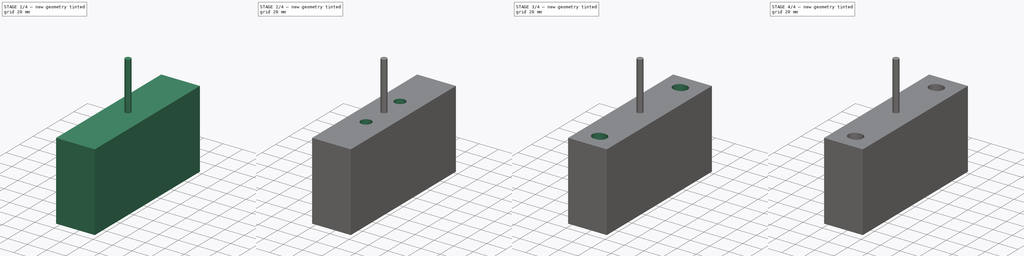
[diagram: build sequence overview — one tinted view per stage of 4, left to right]
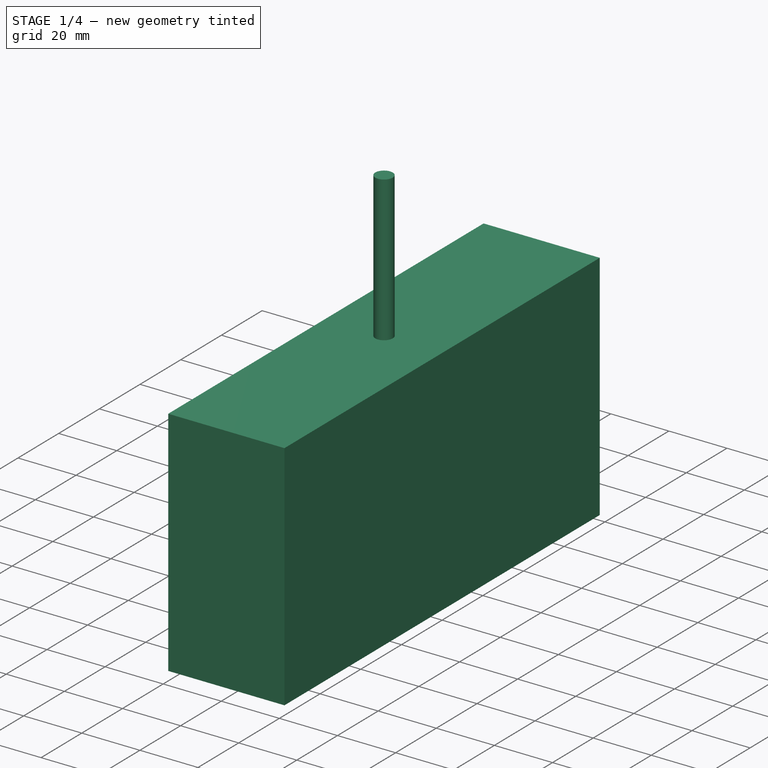
[diagram: stage 1 of 4 — iso view after this stage's code; geometry added in this stage tinted green]
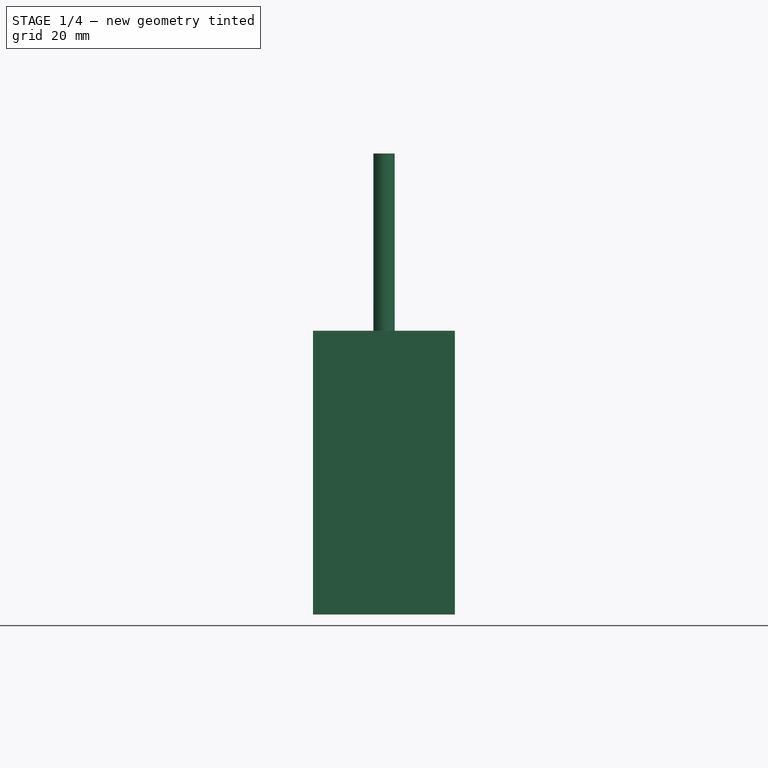
[diagram: stage 1 of 4 — front view after this stage's code; geometry added in this stage tinted green]
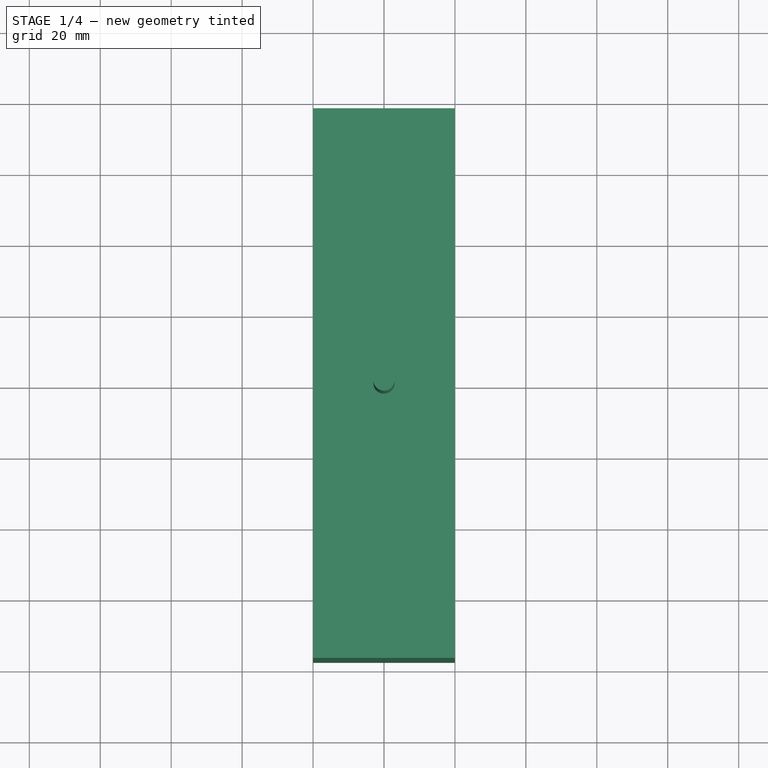
[diagram: stage 1 of 4 — top view after this stage's code; geometry added in this stage tinted green]
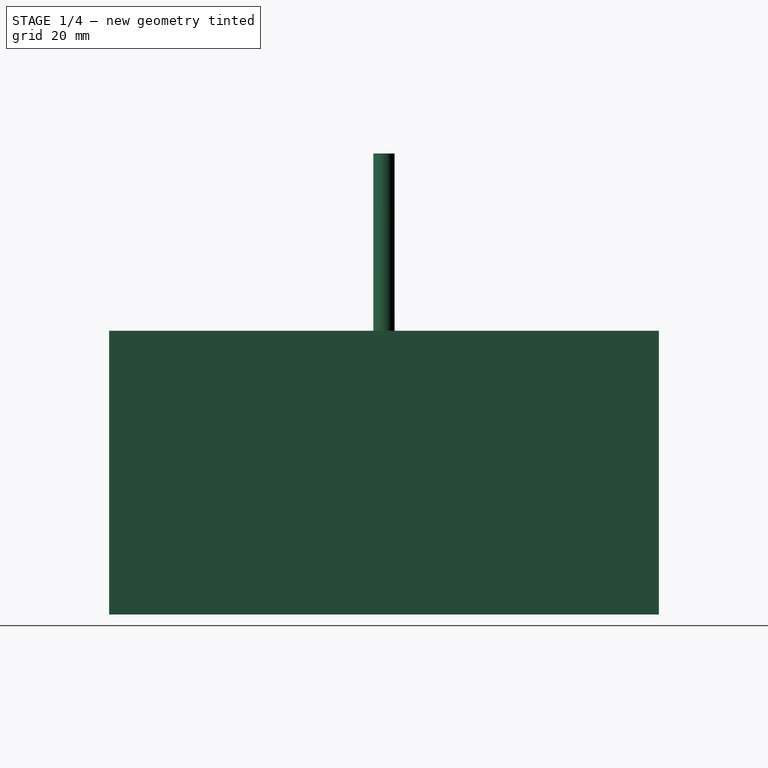
[diagram: stage 1 of 4 — right view after this stage's code; geometry added in this stage tinted green]
FCSTD DOCUMENT  (FreeCAD 0.20R29603 (Git))
Label: Drill_80_40_Profile_template
License: All rights reserved
LicenseURL: http://en.wikipedia.org/wiki/All_rights_reserved
objects: Sketcher::SketchObject×4, PartDesign::SubShapeBinder×4, Path::FeaturePython×4, PartDesign::Pad×3, Part::FeaturePython×3, App::DocumentObjectGroup×3, PartDesign::Pocket×2, PartDesign::Body×2, Spreadsheet::Sheet×1, PartDesign::Hole×1, App::FeaturePython×1
note: 27 computed .brp shape members not serialized (recipe doc carries the construction recipe); baked Part::Feature solids carry a one-line shape summary decoded from their .brp

FEATURE [Sketcher::SketchObject] Sketch
  FullyConstrained = true
  MapMode = 5
  Placement = pos=(0,0,0) rot=(1,0,0;1.5708rad)
  Support = -> [XZ_Plane]
  expr: Constraints[8] = <<Spreadsheet_profile>>.Heigth
  expr: Constraints[9] = <<Spreadsheet_profile>>.Wide
  sketch-geometry (5):
    g0: LineSegment StartX=-20 StartY=0 StartZ=0 EndX=-20 EndY=-80 EndZ=0
    g1: LineSegment StartX=-20 StartY=-80 StartZ=0 EndX=20 EndY=-80 EndZ=0
    g2: LineSegment StartX=20 StartY=-80 StartZ=0 EndX=20 EndY=0 EndZ=0
    g3: LineSegment StartX=20 StartY=0 StartZ=0 EndX=-20 EndY=0 EndZ=0
    g4: GeomPoint X=0 Y=0 Z=0
  constraints (12):
    c: Coincident(g0,g1)
    c: Coincident(g1,g2)
    c: Coincident(g2,g3)
    c: Coincident(g3,g0)
    c: Horizontal(g1)
    c: Vertical(g0)
    c: Vertical(g2)
    c: Coincident(g4,g-1)
    c: DistanceY(g0,g0) = 80
    c: DistanceX(g3,g3) = 40
    c: Horizontal(g0,g4)
    c: Symmetric(g0,g2,g-2)
FEATURE [Spreadsheet::Sheet] Spreadsheet  label="Spreadsheet_profile"
  cells = A1=Name; B1=Value; A2=Wide; B2(Wide)=40; A3=Heigth; B3(Heigth)=80; A4=Lenght; B4(Lenght)=155; A5=Slot_Height; B5(Slot_Height)=12.5; A7=Central_Hole_Diameter; B7(Central_Hole_Diameter)=30; A10=Distance_Hole_6mm; B10(Distance_Hole_6mm)=50; A11=Distance_Hole_8mm; B11(Distance_Hole_8mm)=120
FEATURE [PartDesign::Pad] Pad  label="Pad_40_80_Profile"
  Direction = (0,-1,-2e-16)
  Length = 155
  Length2 = 10
  Midplane = true
  Placement = pos=(0,0,0) rot=(1,0,0;1.5708rad)
  Profile = -> Sketch
  ReferenceAxis = -> Sketch [N_Axis]
  Type = 0
  expr: Length = <<Spreadsheet_profile>>.Lenght
FEATURE [App::DocumentObjectGroup] Model
  Group = -> [Clone]
FEATURE [Part::FeaturePython] ToolBit001  label="6mm Endmill"  # Path/CAM toolbit (typed FeaturePython)
  BitPropertyNames = Chipload | CuttingEdgeHeight | Diameter | Flutes | Length | Material | ShankDiameter | SpindleDirection
  BitShape = <path>
  Chipload = 0
  CuttingEdgeHeight = 30
  Diameter = 6
  File = <path>
  Flutes = 0
  Length = 50
  Material = 0
  ShankDiameter = 6
  ShapeName = endmill
  SpindleDirection = 0
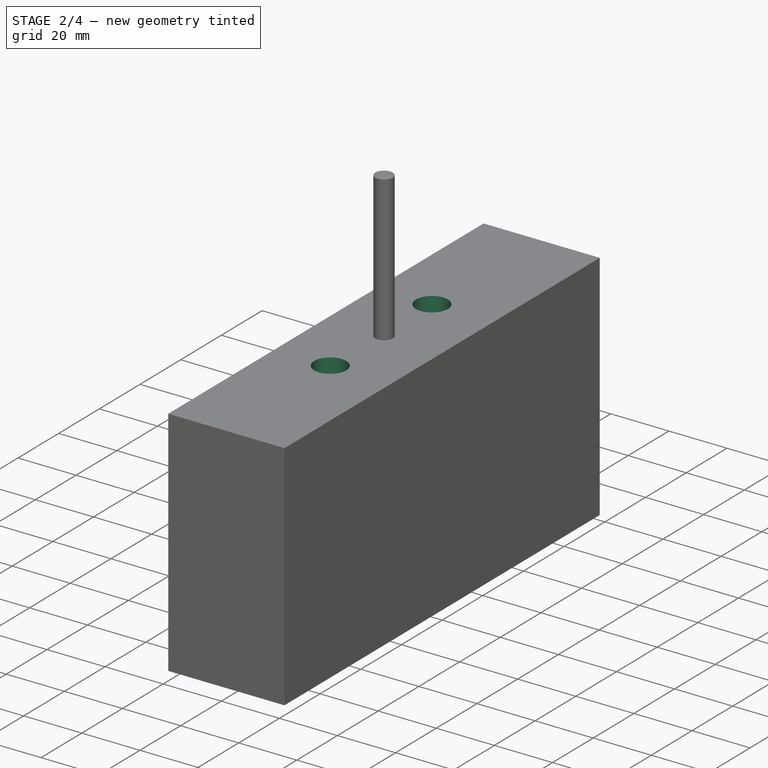
[diagram: stage 2 of 4 — iso view after this stage's code; geometry added in this stage tinted green]
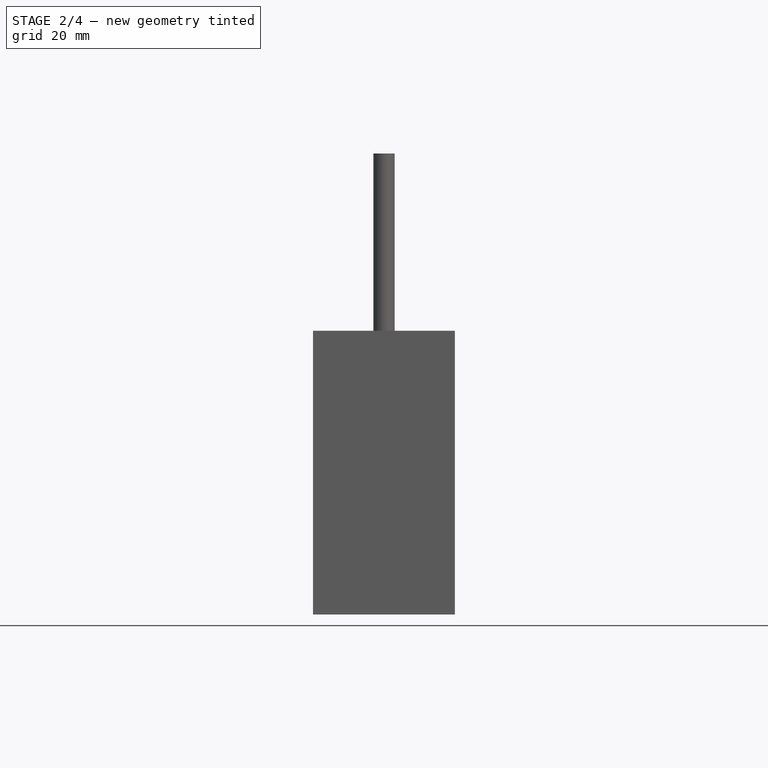
[diagram: stage 2 of 4 — front view after this stage's code; geometry added in this stage tinted green]
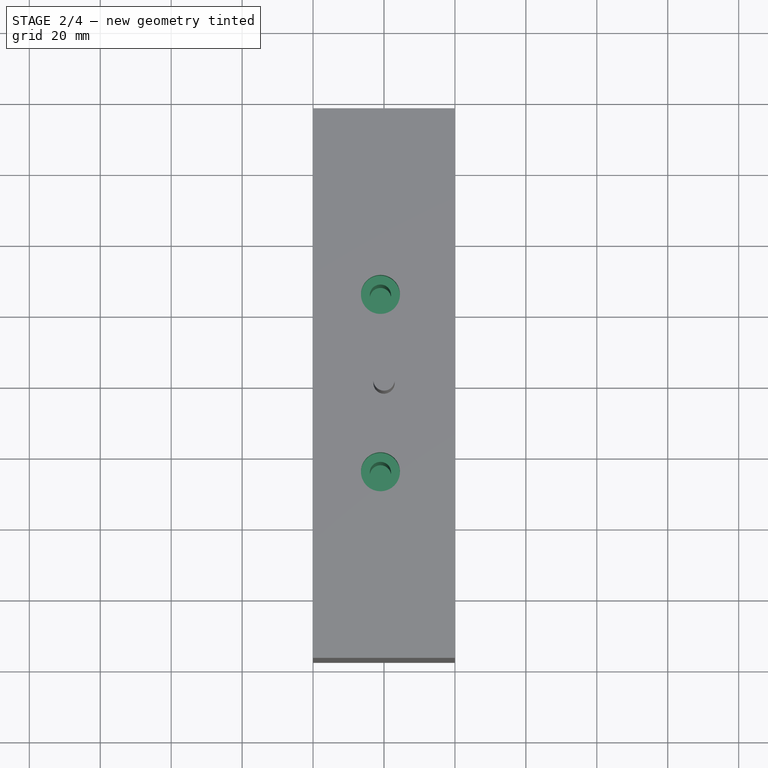
[diagram: stage 2 of 4 — top view after this stage's code; geometry added in this stage tinted green]
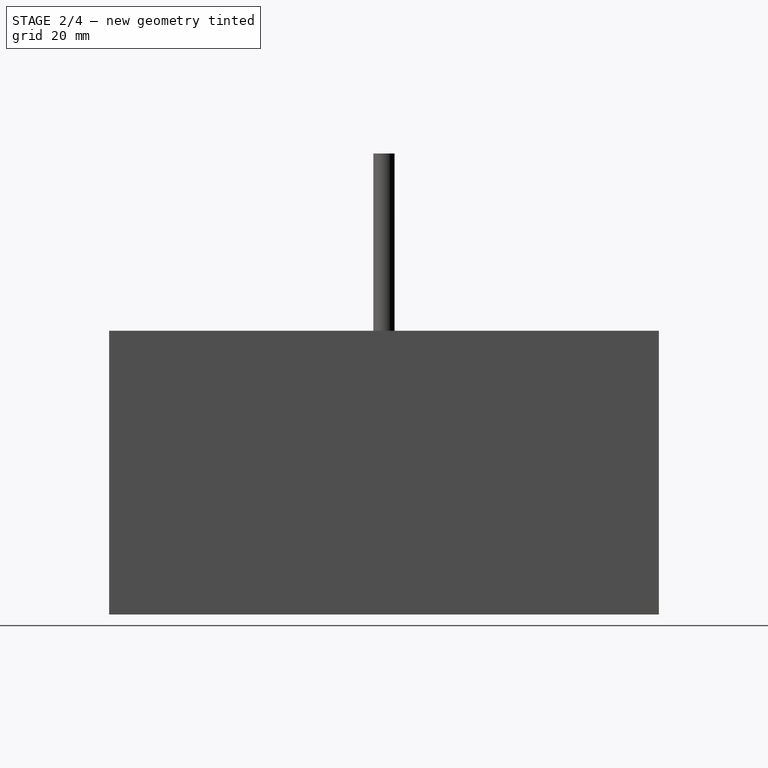
[diagram: stage 2 of 4 — right view after this stage's code; geometry added in this stage tinted green]
FEATURE [Sketcher::SketchObject] Sketch001
  FullyConstrained = true
  MapMode = 5
  Placement = pos=(0,0,0) rot=(0,0,1;3.14159rad)
  Support = -> [Pad]
  sketch-geometry (2):
    g0: Circle CenterX=1 CenterY=25 CenterZ=0 NormalX=0 NormalY=0 NormalZ=1 AngleXU=0 Radius=3
    g1: Circle CenterX=1 CenterY=-25 CenterZ=0 NormalX=0 NormalY=0 NormalZ=1 AngleXU=0 Radius=3
  constraints (5):
    c: Equal(g1,g0)
    c: Diameter(g0) = 6
    c: Symmetric(g0,g1,g-1)
    c: DistanceY(g1,g0) = 50
    c: DistanceX(g-1,g0) = 1
FEATURE [PartDesign::Hole] Hole  label="Hole_6mm"
  BaseFeature = -> Pad
  CustomThreadClearance = 0
  Depth = 67.5
  DepthType = 0
  Diameter = 6
  DrillForDepth = false
  DrillPoint = 0
  DrillPointAngle = 118
  HoleCutCountersinkAngle = 90
  HoleCutCustomValues = false
  HoleCutDepth = 12.5
  HoleCutDiameter = 11
  HoleCutType = 1
  ModelThread = false
  Placement = pos=(0,0,0) rot=(1,0,0;1.5708rad)
  Profile = -> Sketch001
  Tapered = false
  TaperedAngle = 90
  ThreadClass = 0
  ThreadDepth = 67.5
  ThreadDepthType = 0
  ThreadDirection = 0
  ThreadFit = 0
  ThreadSize = 0
  ThreadType = 0
  Threaded = false
  UseCustomThreadClearance = false
  expr: Depth = <<Spreadsheet_profile>>.Heigth - <<Spreadsheet_profile>>.Slot_Height
  expr: HoleCutDepth = <<Spreadsheet_profile>>.Slot_Height
FEATURE [Sketcher::SketchObject] Sketch002  label="Sketch_8mmPocket"
  FullyConstrained = true
  MapMode = 5
  Placement = pos=(0,1.78e-14,-80) rot=(1,0,0;3.14159rad)
  Support = -> [Hole]
  sketch-geometry (16):
    g0: ArcOfCircle CenterX=-1 CenterY=59.5 CenterZ=0 NormalX=0 NormalY=0 NormalZ=1 AngleXU=0 Radius=4.25 StartAngle=1.5708 EndAngle=4.71239
    g1: ArcOfCircle CenterX=1 CenterY=59.5 CenterZ=0 NormalX=0 NormalY=0 NormalZ=1 AngleXU=0 Radius=4.25 StartAngle=4.71239 EndAngle=7.85398
    g2: LineSegment StartX=-1 StartY=55.25 StartZ=0 EndX=1 EndY=55.25 EndZ=0
    g3: LineSegment StartX=1 StartY=63.75 StartZ=0 EndX=-1 EndY=63.75 EndZ=0
    g4: ArcOfCircle CenterX=-1 CenterY=-59.5 CenterZ=0 NormalX=0 NormalY=0 NormalZ=1 AngleXU=0 Radius=4.25 StartAngle=1.5708 EndAngle=4.71239
    g5: ArcOfCircle CenterX=1 CenterY=-59.5 CenterZ=0 NormalX=0 NormalY=0 NormalZ=1 AngleXU=0 Radius=4.25 StartAngle=4.71239 EndAngle=7.85398
    g6: LineSegment StartX=-1 StartY=-63.75 StartZ=0 EndX=1 EndY=-63.75 EndZ=0
    g7: LineSegment StartX=1 StartY=-55.25 StartZ=0 EndX=-1 EndY=-55.25 EndZ=0
    g8: ArcOfCircle CenterX=-1 CenterY=59.5 CenterZ=0 NormalX=0 NormalY=0 NormalZ=1 AngleXU=0 Radius=6.5 StartAngle=1.5708 EndAngle=4.71239
    g9: ArcOfCircle CenterX=1 CenterY=59.5 CenterZ=0 NormalX=0 NormalY=0 NormalZ=1 AngleXU=0 Radius=6.5 StartAngle=4.71239 EndAngle=7.85398
    g10: LineSegment StartX=-1 StartY=53 StartZ=0 EndX=1 EndY=53 EndZ=0
    g11: LineSegment StartX=1 StartY=66 StartZ=0 EndX=-1 EndY=66 EndZ=0
    g12: ArcOfCircle CenterX=-1 CenterY=-59.5 CenterZ=0 NormalX=0 NormalY=0 NormalZ=1 AngleXU=0 Radius=6.5 StartAngle=1.5708 EndAngle=4.71239
    g13: ArcOfCircle CenterX=1 CenterY=-59.5 CenterZ=0 NormalX=0 NormalY=0 NormalZ=1 AngleXU=0 Radius=6.5 StartAngle=4.71239 EndAngle=7.85398
    g14: LineSegment StartX=-1 StartY=-66 StartZ=0 EndX=1 EndY=-66 EndZ=0
    g15: LineSegment StartX=1 StartY=-53 StartZ=0 EndX=-1 EndY=-53 EndZ=0
  constraints (33):
    c: Tangent(g0,g2) = -1.5708
    c: Tangent(g2,g1) = -1.5708
    c: Tangent(g1,g3) = -1.5708
    c: Tangent(g3,g0) = -1.5708
    c: Equal(g0,g1)
    c: Tangent(g4,g6) = -1.5708
    c: Tangent(g6,g5) = -1.5708
    c: Tangent(g5,g7) = -1.5708
    c: Tangent(g7,g4) = -1.5708
    c: Equal(g4,g5)
    c: Equal(g1,g5)
    c: Diameter(g1) = 8.5
    c: DistanceX(g3,g3) = 2
    c: DistanceY(g4,g0) = 119
    c: Symmetric(g0,g1,g-2)
    c: Symmetric(g4,g5,g-2)
    c: Symmetric(g4,g0,g-1)
    c: Tangent(g8,g10) = -1.5708
    c: Tangent(g10,g9) = -1.5708
    c: Tangent(g9,g11) = -1.5708
    c: Tangent(g11,g8) = -1.5708
    c: Equal(g8,g9)
    c: Coincident(g8,g0)
    c: Coincident(g9,g1)
    c: Diameter(g9) = 13
    c: Tangent(g12,g14) = -1.5708
    c: Tangent(g14,g13) = -1.5708
    c: Tangent(g13,g15) = -1.5708
    c: Tangent(g15,g12) = -1.5708
    c: Equal(g12,g13)
    c: Coincident(g12,g4)
    c: Coincident(g13,g5)
    c: Equal(g9,g13)
FEATURE [PartDesign::SubShapeBinder] Binder  label="Binder_8mmHole"
  BindCopyOnChange = 0
  BindMode = 0
  ClaimChildren = false
  Context = -> Body [Binder.]
  Fuse = false
  MakeFace = true
  OffsetFill = false
  OffsetIntersection = false
  OffsetJoinType = 0
  OffsetOpenResult = false
  PartialLoad = false
  Relative = true
  Support = -> [Sketch002[Edge5,Edge8,Edge7,Edge6,Edge1,Edge4,Edge3,Edge2]]
  _Version = 2
FEATURE [PartDesign::SubShapeBinder] Binder001  label="Binder_ConterBore"
  BindCopyOnChange = 0
  BindMode = 0
  ClaimChildren = false
  Context = -> Body [Binder001.]
  Fuse = false
  MakeFace = true
  OffsetFill = false
  OffsetIntersection = false
  OffsetJoinType = 0
  OffsetOpenResult = false
  PartialLoad = false
  Relative = true
  Support = -> [Sketch002[Edge5,Edge8,Edge7,Edge6,Edge1,Edge4,Edge3,Edge2]]
  _Version = 2
FEATURE [PartDesign::Pocket] Pocket  label="Pocket_8mm"
  BaseFeature = -> Hole
  Direction = (0,2e-16,-1)
  Length = 67.5
  Length2 = 5
  Placement = pos=(0,0,0) rot=(1,0,0;1.5708rad)
  Profile = -> Binder
  Reversed = true
  Type = 0
  expr: Length = <<Spreadsheet_profile>>.Heigth - <<Spreadsheet_profile>>.Slot_Height
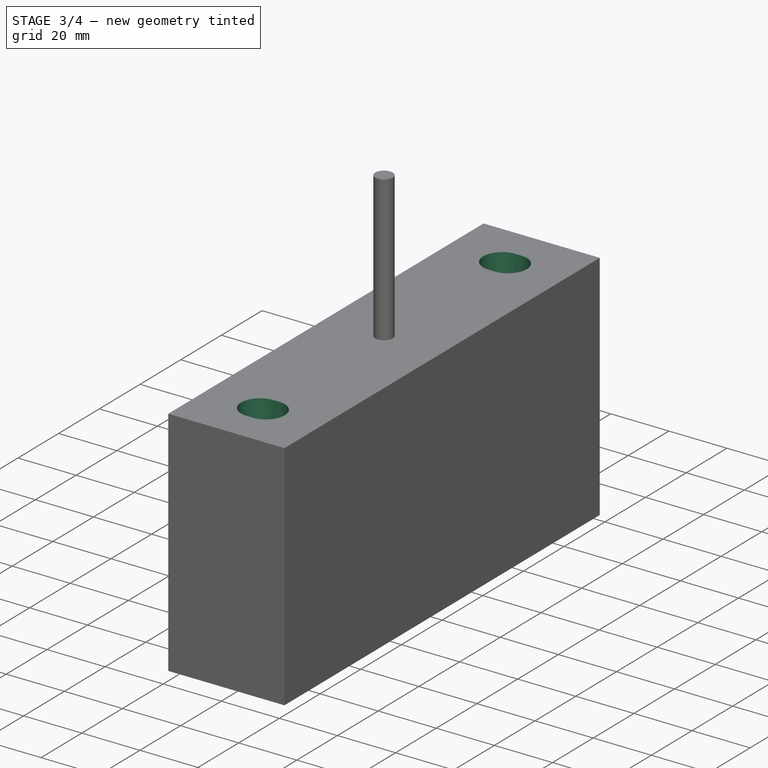
[diagram: stage 3 of 4 — iso view after this stage's code; geometry added in this stage tinted green]
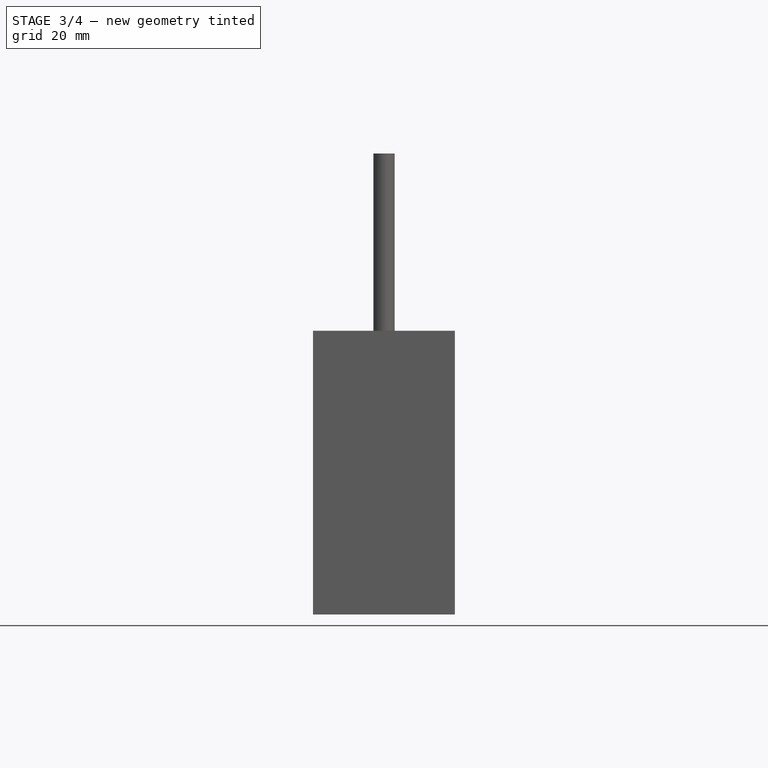
[diagram: stage 3 of 4 — front view after this stage's code; geometry added in this stage tinted green]
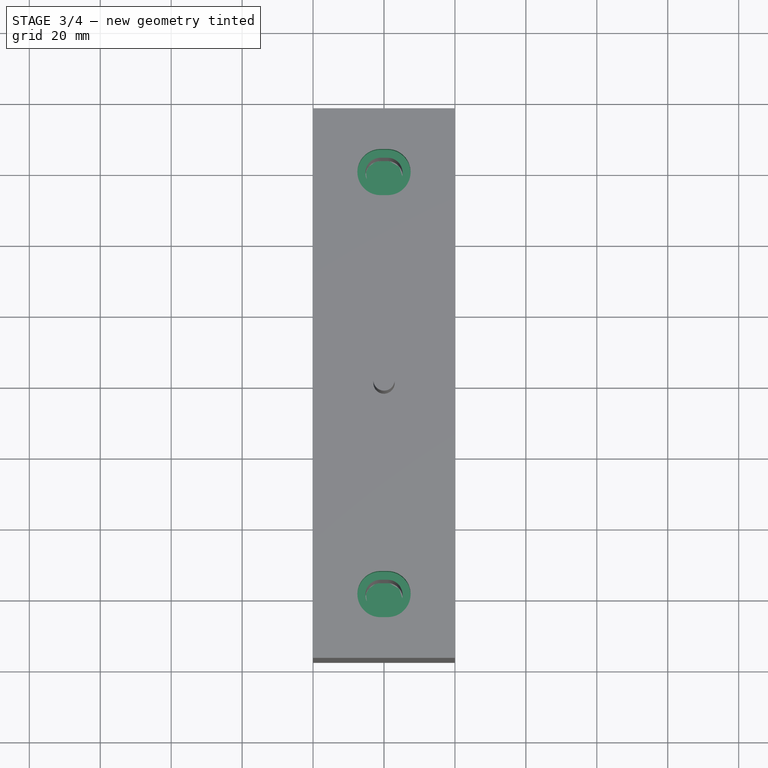
[diagram: stage 3 of 4 — top view after this stage's code; geometry added in this stage tinted green]
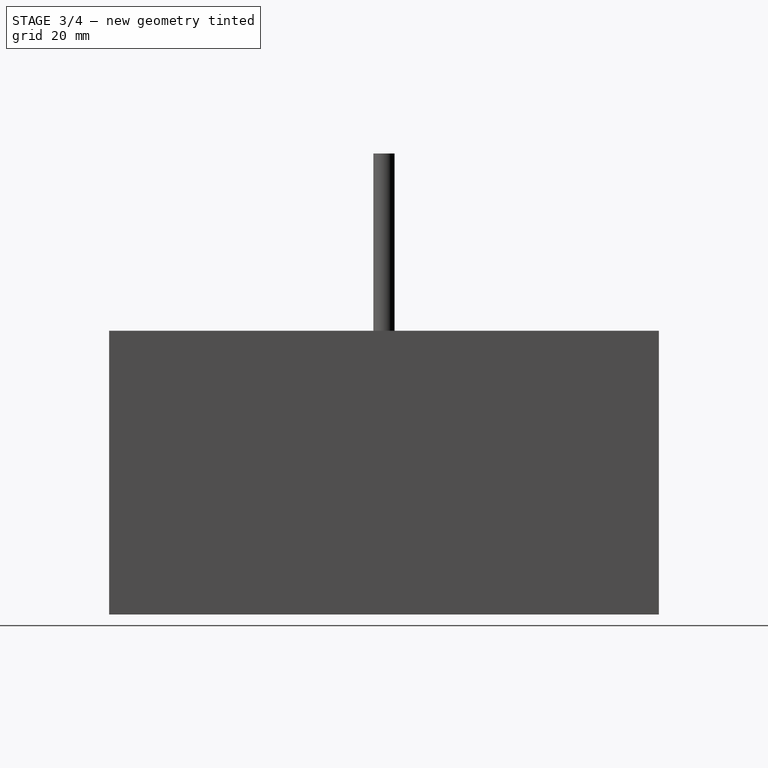
[diagram: stage 3 of 4 — right view after this stage's code; geometry added in this stage tinted green]
FEATURE [PartDesign::Pocket] Pocket001  label="Pocket_8mmConterbore"
  BaseFeature = -> Pocket
  Direction = (0,2e-16,-1)
  Length = 12.5
  Length2 = 5
  Placement = pos=(0,0,0) rot=(1,0,0;1.5708rad)
  Profile = -> Binder001
  Reversed = true
  Type = 0
  expr: Length = <<Spreadsheet_profile>>.Slot_Height
FEATURE [PartDesign::Body] Body001
  Group = -> [Sketch003,Binder002,Binder003,Pad001,Pad002]
  Origin = -> Origin001
  Tip = -> Pad002
FEATURE [App::FeaturePython] SetupSheet  # Path/CAM operation (typed FeaturePython)
  ClearanceHeightExpression = OpStockZMax+SetupSheet.ClearanceHeightOffset
  ClearanceHeightOffset = 5
  CoolantMode = 0
  CoolantModes = None | Flood | Mist
  FinalDepthExpression = OpFinalDepth
  HorizRapid = 0
  SafeHeightExpression = OpStockZMax+SetupSheet.SafeHeightOffset
  SafeHeightOffset = 3
  StartDepthExpression = OpStartDepth
  StepDownExpression = OpToolDiameter
  VertRapid = 0
FEATURE [Part::FeaturePython] Clone  label="Model-Spindel_bracket"  # Draft clone (typed FeaturePython)
  AttacherType = Attacher::AttachEngine3D
  Fuse = false
  Objects = -> [Body]
  PathResource = Model
  Placement = pos=(0,0,-80) rot=(0,-1,0;3.14159rad)
  Scale = (1,1,1)
FEATURE [Path::FeaturePython] _mm_Endmill  label="6mm Endmill001"  # Path/CAM operation (typed FeaturePython)
  HorizFeed = 0
  HorizRapid = 0
  SpindleDir = 0
  SpindleSpeed = 0
  Tool = -> ToolBit001
  ToolNumber = 2
  VertFeed = 0
  VertRapid = 0
  expr: HorizRapid = SetupSheet.HorizRapid
  expr: VertRapid = SetupSheet.VertRapid
FEATURE [App::DocumentObjectGroup] Tools
  Group = -> [_mm_Endmill]
FEATURE [Part::FeaturePython] Clone014  label="Stock-Model"  # Draft clone (typed FeaturePython)
  AttacherType = Attacher::AttachEngine3D
  Fuse = false
  Objects = -> [Model]
  PathResource = Stock
  Scale = (1,1,1)
  StockType = Unknown
FEATURE [Path::FeaturePython] Adaptive001  # Path/CAM operation (typed FeaturePython)
  Active = true
  Base = -> [Clone]
  ClearanceHeight = 5
  CoolantMode = 0
  CycleTime = Ошибка цикла
  ExtensionCorners = true
  ExtensionLengthDefault = 3
  FinalDepth = -12.5
  FinishDepth = 0
  FinishingProfile = true
  ForceInsideOut = false
  HelixAngle = 5
  HelixConeAngle = 0
  HelixDiameterLimit = 0
  KeepToolDownRatio = 3
  LiftDistance = 0
  OpFinalDepth = -12.5
  OpStartDepth = 0
  OpStockZMax = 0
  OpStockZMin = -80
  OpToolDiameter = 6
  OperationType = 0
  SafeHeight = 3
  Side = 1
  StartDepth = 0
  StepDown = 6
  StepOver = 20
  StockToLeave = 0
  StopProcessing = false
  Stopped = false
  Tolerance = 0.1
  ToolController = -> _mm_Endmill
  UseHelixArcs = false
  UseOutline = false
  expr: ClearanceHeight = OpStockZMax + SetupSheet.ClearanceHeightOffset
  expr: ExtensionLengthDefault = OpToolDiameter / 2
  expr: FinalDepth = OpFinalDepth
  expr: SafeHeight = OpStockZMax + SetupSheet.SafeHeightOffset
  expr: StartDepth = OpStartDepth
  expr: StepDown = OpToolDiameter
FEATURE [Path::FeaturePython] Adaptive  # Path/CAM operation (typed FeaturePython)
  Active = true
  Base = -> [Clone]
  ClearanceHeight = 5
  CoolantMode = 0
  CycleTime = Ошибка цикла
  ExtensionCorners = true
  ExtensionLengthDefault = 3
  FinalDepth = -68
  FinishDepth = 0
  FinishingProfile = true
  ForceInsideOut = false
  HelixAngle = 5
  HelixConeAngle = 0
  HelixDiameterLimit = 2
  KeepToolDownRatio = 3
  LiftDistance = 0
  OpFinalDepth = -67.5
  OpStartDepth = 0
  OpStockZMax = 0
  OpStockZMin = -80
  OpToolDiameter = 6
  OperationType = 0
  SafeHeight = 3
  Side = 1
  StartDepth = -12.5
  StepDown = 6
  StepOver = 20
  StockToLeave = 0
  StopProcessing = false
  Stopped = false
  Tolerance = 0.1
  ToolController = -> _mm_Endmill
  UseHelixArcs = false
  UseOutline = false
  expr: ClearanceHeight = OpStockZMax + SetupSheet.ClearanceHeightOffset
  expr: ExtensionLengthDefault = OpToolDiameter / 2
  expr: FinalDepth = OpFinalDepth - 0.5 mm
  expr: SafeHeight = OpStockZMax + SetupSheet.SafeHeightOffset
  expr: StepDown = OpToolDiameter
FEATURE [App::DocumentObjectGroup] Operations
  Group = -> [Adaptive001,Adaptive]
FEATURE [Path::FeaturePython] Job  # Path/CAM operation (typed FeaturePython)
  CycleTime = 00:00:00
  Fixtures = G54
  GeometryTolerance = 0.01
  JobType = 0
  Model = -> Model
  Operations = -> Operations
  OrderOutputBy = 0
  PostProcessor = 8
  PostProcessorArgs = --bcnc
  SetupSheet = -> SetupSheet
  SplitOutput = false
  Stock = -> Clone014
  Tools = -> Tools
note: 2 file-system paths scrubbed to <path> (originals preserved in the JSON sidecar)
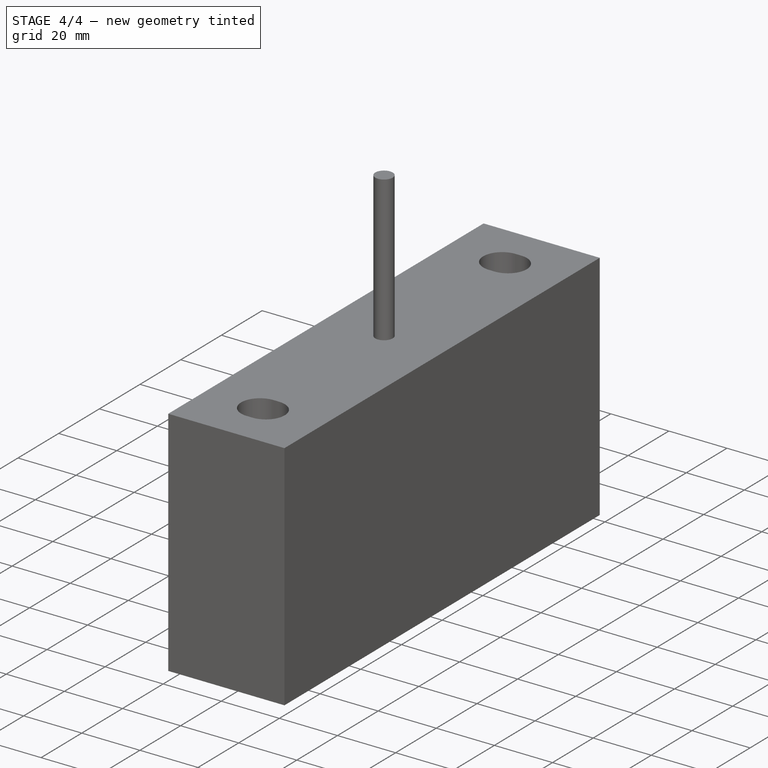
[diagram: stage 4 of 4 — iso view after this stage's code; geometry added in this stage tinted green]
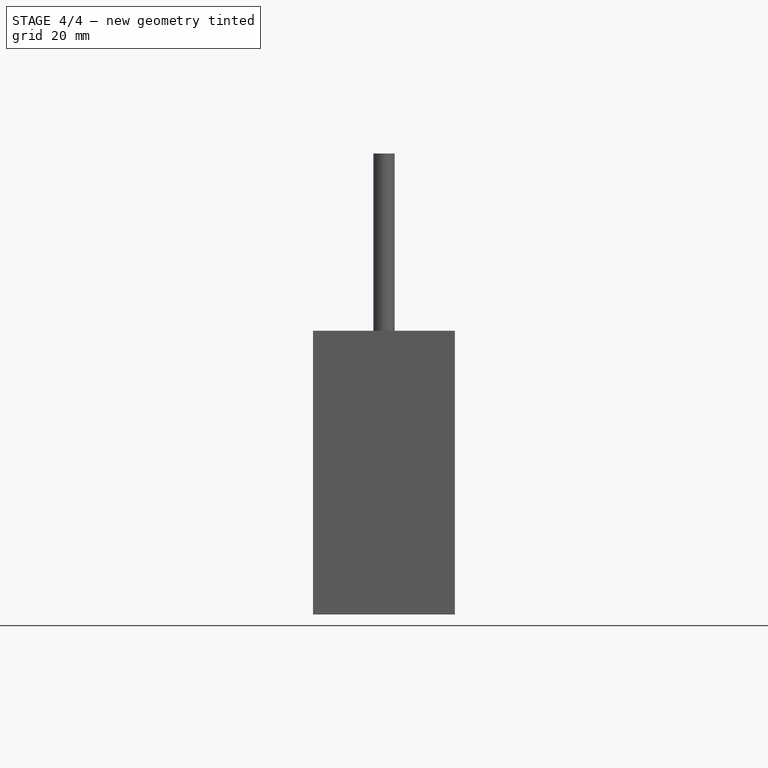
[diagram: stage 4 of 4 — front view after this stage's code; geometry added in this stage tinted green]
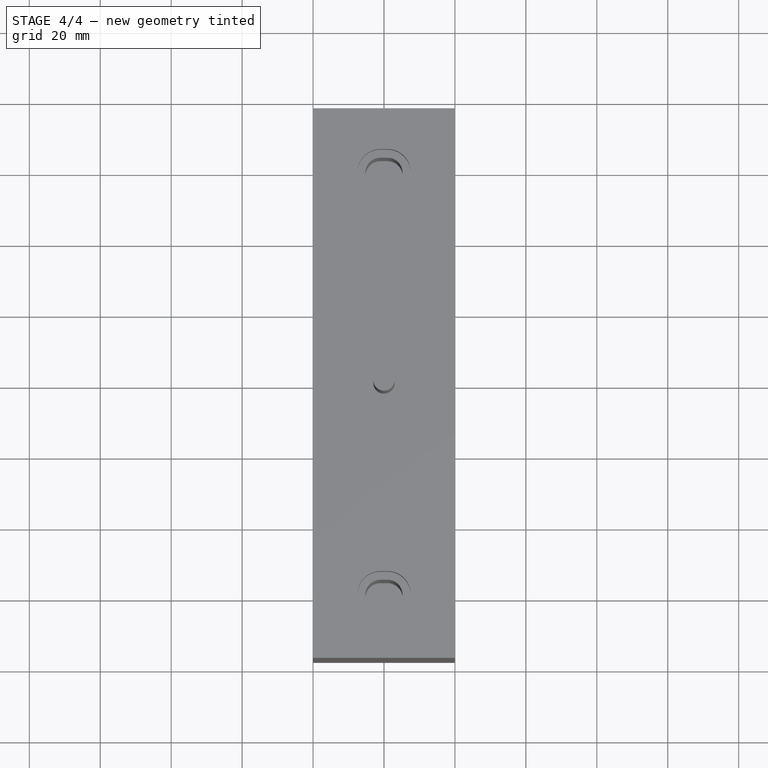
[diagram: stage 4 of 4 — top view after this stage's code; geometry added in this stage tinted green]
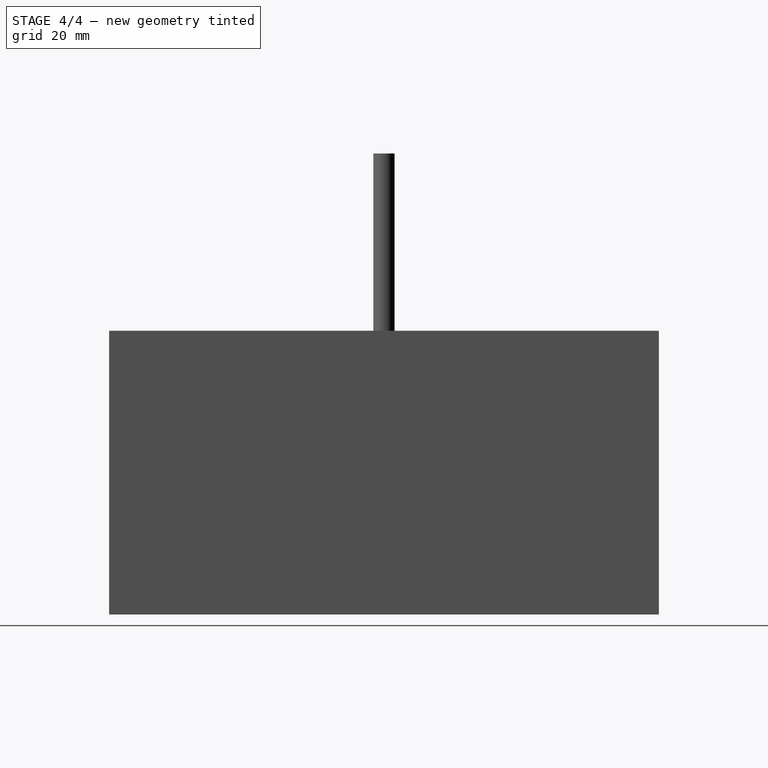
[diagram: stage 4 of 4 — right view after this stage's code; geometry added in this stage tinted green]
FEATURE [PartDesign::Body] Body  label="Spindel_bracket"
  Group = -> [Sketch,Pad,Sketch001,Hole,Sketch002,Binder,Binder001,Pocket,Pocket001]
  Origin = -> Origin
  Tip = -> Pocket001
FEATURE [Sketcher::SketchObject] Sketch003
  FullyConstrained = true
  MapMode = 5
  Support = -> [XY_Plane001]
  sketch-geometry (2):
    g0: Circle CenterX=0 CenterY=0 CenterZ=0 NormalX=0 NormalY=0 NormalZ=1 AngleXU=0 Radius=2.5
    g1: Circle CenterX=0 CenterY=0 CenterZ=0 NormalX=0 NormalY=0 NormalZ=1 AngleXU=0 Radius=5
  constraints (4):
    c: Diameter(g0) = 5
    c: Coincident(g1,g0)
    c: Diameter(g1) = 10
    c: Coincident(g0,g-1)
FEATURE [PartDesign::SubShapeBinder] Binder002
  BindCopyOnChange = 0
  BindMode = 0
  ClaimChildren = false
  Context = -> Body001 [Binder002.]
  Fuse = false
  MakeFace = true
  OffsetFill = false
  OffsetIntersection = false
  OffsetJoinType = 0
  OffsetOpenResult = false
  PartialLoad = false
  Relative = true
  Support = -> [Sketch003[Edge1]]
  _Version = 2
FEATURE [PartDesign::SubShapeBinder] Binder003
  BindCopyOnChange = 0
  BindMode = 0
  ClaimChildren = false
  Context = -> Body001 [Binder003.]
  Fuse = false
  MakeFace = true
  OffsetFill = false
  OffsetIntersection = false
  OffsetJoinType = 0
  OffsetOpenResult = false
  PartialLoad = false
  Relative = true
  Support = -> [Sketch003[Edge2]]
  _Version = 2
FEATURE [PartDesign::Pad] Pad001
  Direction = (0,0,1)
  Length = 67.5
  Length2 = 10
  Profile = -> Binder002
  Reversed = true
  Type = 0
  expr: Length = <<Spreadsheet_profile>>.Heigth - <<Spreadsheet_profile>>.Slot_Height
FEATURE [PartDesign::Pad] Pad002
  BaseFeature = -> Pad001
  Direction = (0,0,1)
  Length = 10
  Length2 = 10
  Profile = -> Binder003
  Reversed = true
  Type = 0
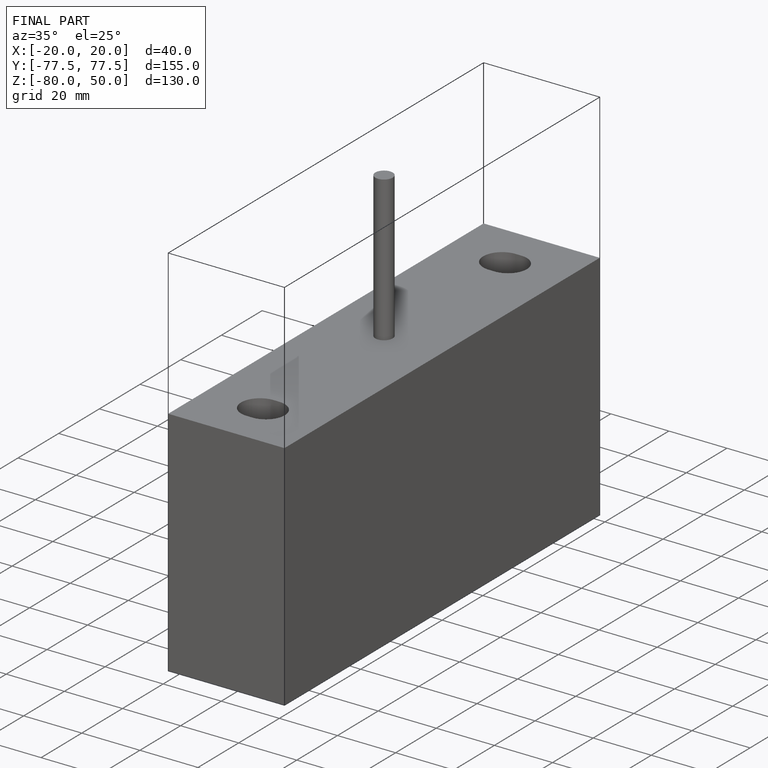
[diagram: finished part — iso view with bounding-box wireframe]
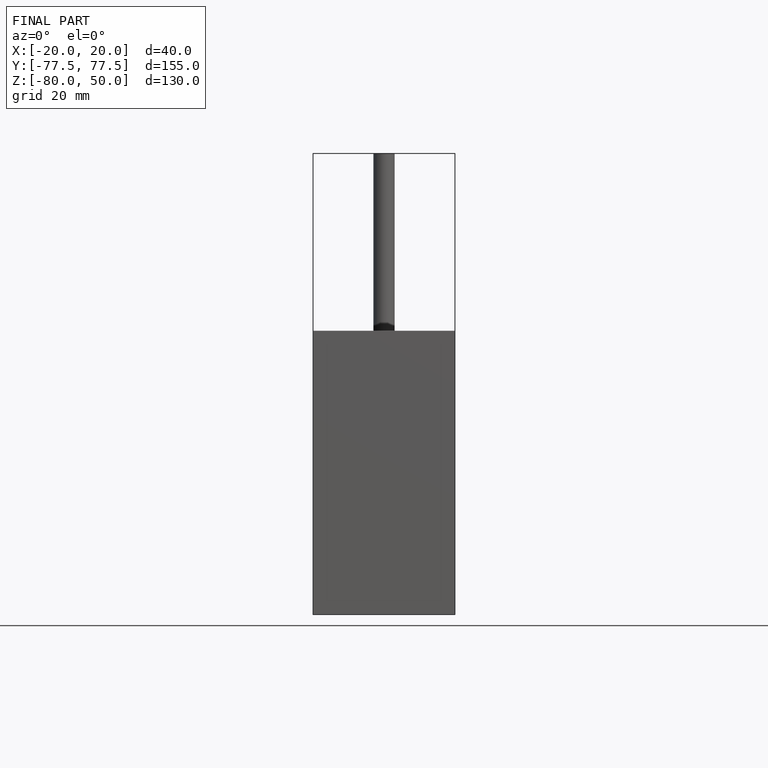
[diagram: finished part — front view with bounding-box wireframe]
